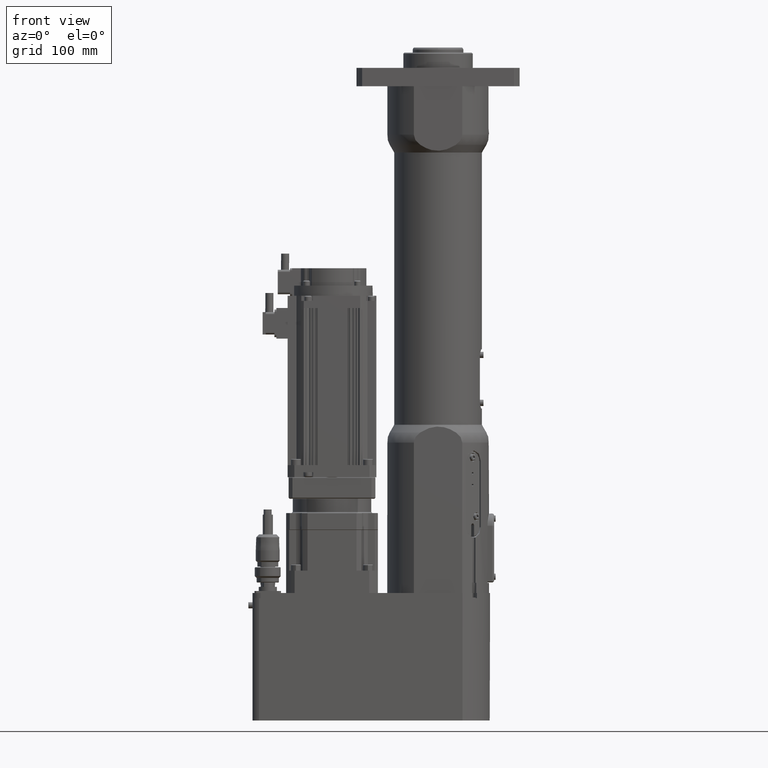
[diagram: clean part render]
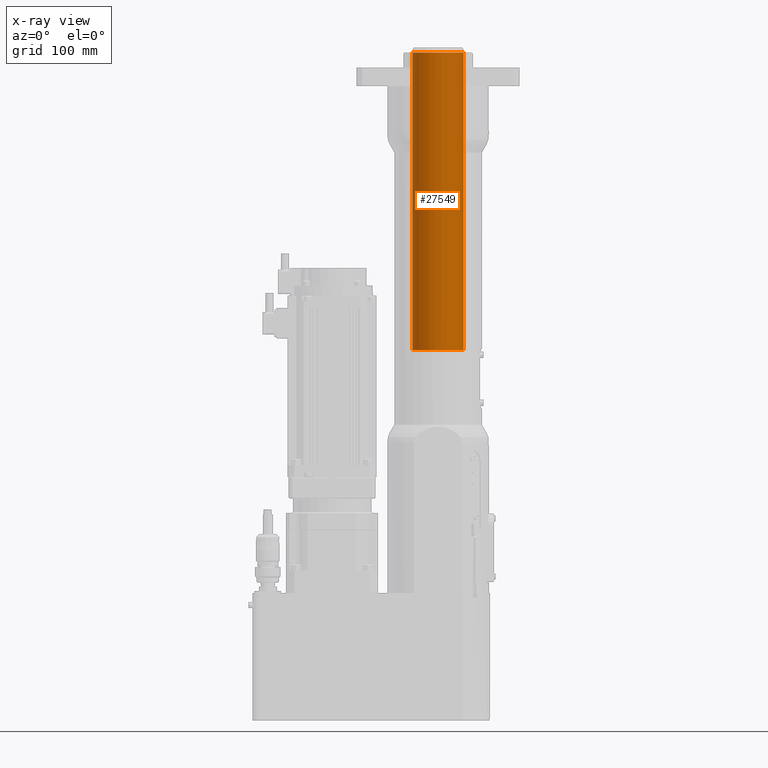
[diagram: x-ray — body ghosted, one internal face saturated and labeled with its STEP entity id]
A machine part, front view, then the same camera in x-ray: the body is ghosted and one INTERNAL B-rep face — a face not visible from any outside direction — is saturated and labeled: STEP entity #27549.
In plain terms, the highlighted cylindrical surface (bore or boss wall) has radius 25 mm, axis along (-0, 0, 1).
Its self-contained STEP definition (entity closure, byte-faithful):
#7082=FACE_BOUND('',#10167,.T.);
#7610=CYLINDRICAL_SURFACE('',#29671,25.);
#8343=FACE_OUTER_BOUND('',#10166,.T.);
#10166=EDGE_LOOP('',(#20597));
#10167=EDGE_LOOP('',(#20598));
#12319=CIRCLE('',#29672,25.);
#12320=CIRCLE('',#29673,25.);
#13724=VERTEX_POINT('',#41980);
#13725=VERTEX_POINT('',#41982);
#16399=EDGE_CURVE('',#13724,#13724,#12319,.T.);
#16400=EDGE_CURVE('',#13725,#13725,#12320,.T.);
#20597=ORIENTED_EDGE('',*,*,#16399,.F.);
#20598=ORIENTED_EDGE('',*,*,#16400,.F.);
#27549=ADVANCED_FACE('',(#8343,#7082),#7610,.F.);
#29671=AXIS2_PLACEMENT_3D('',#41979,#33596,#33597);
#29672=AXIS2_PLACEMENT_3D('',#41981,#33598,#33599);
#29673=AXIS2_PLACEMENT_3D('',#41983,#33600,#33601);
#33596=DIRECTION('center_axis',(-6.12323399573676E-17,0.,1.));
#33597=DIRECTION('ref_axis',(1.,0.,6.12323399573676E-17));
#33598=DIRECTION('center_axis',(6.12323399573676E-17,0.,-1.));
#33599=DIRECTION('ref_axis',(1.,0.,6.12323399573676E-17));
#33600=DIRECTION('center_axis',(-6.12323399573676E-17,0.,1.));
#33601=DIRECTION('ref_axis',(1.,0.,6.12323399573676E-17));
#41979=CARTESIAN_POINT('Origin',(7.37391312077368E-15,0.,374.));
#41980=CARTESIAN_POINT('',(25.,0.,520.));
#41981=CARTESIAN_POINT('Origin',(-1.566008513002E-15,0.,520.));
#41982=CARTESIAN_POINT('',(25.,0.,228.));
#41983=CARTESIAN_POINT('Origin',(1.63138347545494E-14,0.,228.));